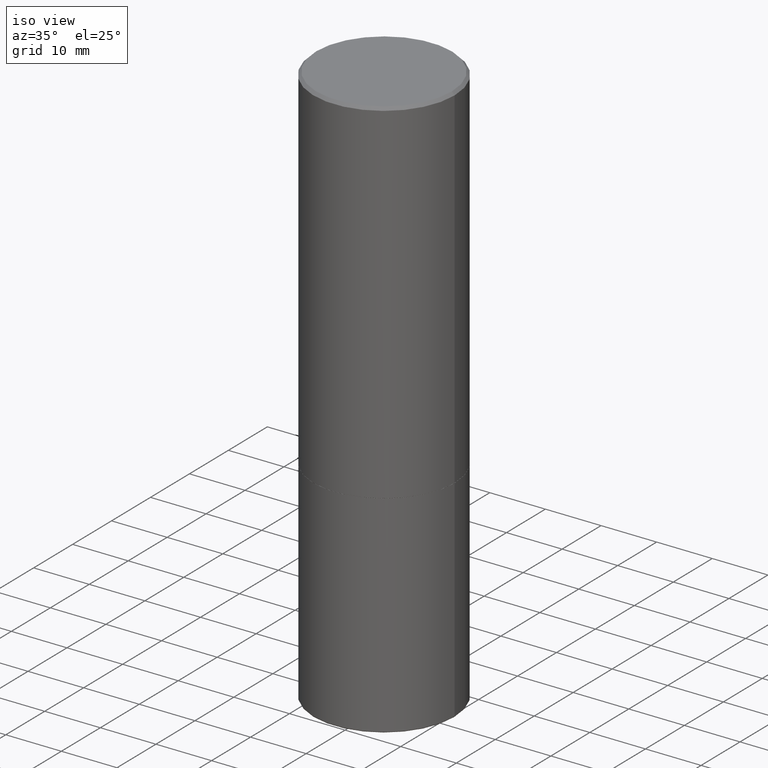
[diagram: clean part render]
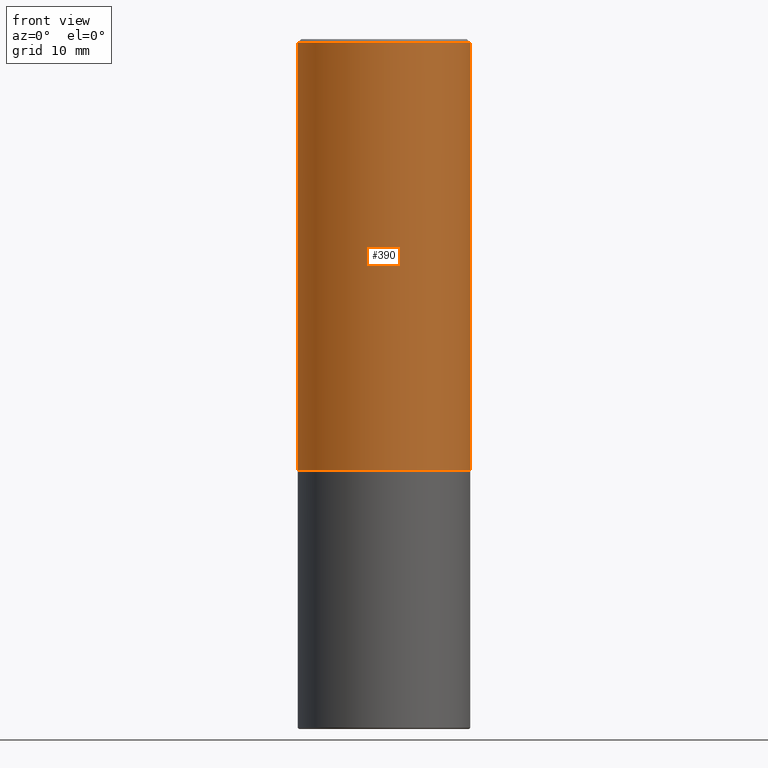
[diagram: tour spotlight — one face highlighted and labeled with its STEP entity id]
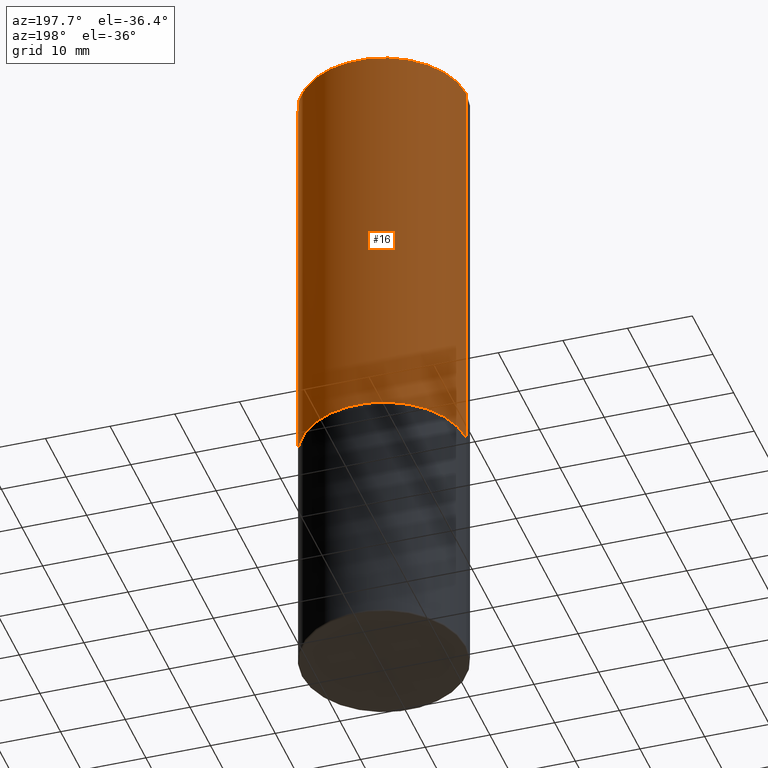
[diagram: tour spotlight — one face highlighted and labeled with its STEP entity id]
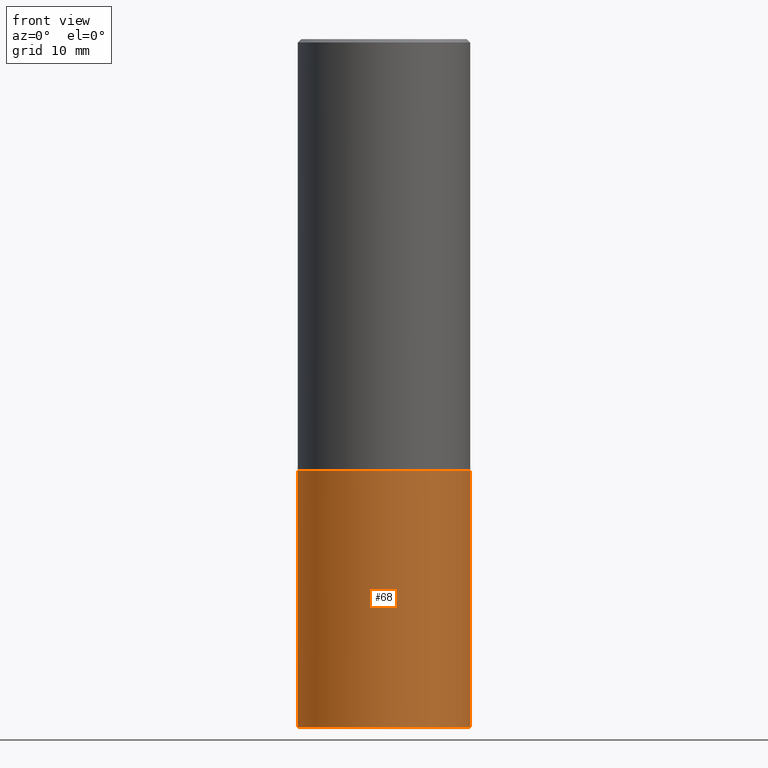
[diagram: tour spotlight — one face highlighted and labeled with its STEP entity id]
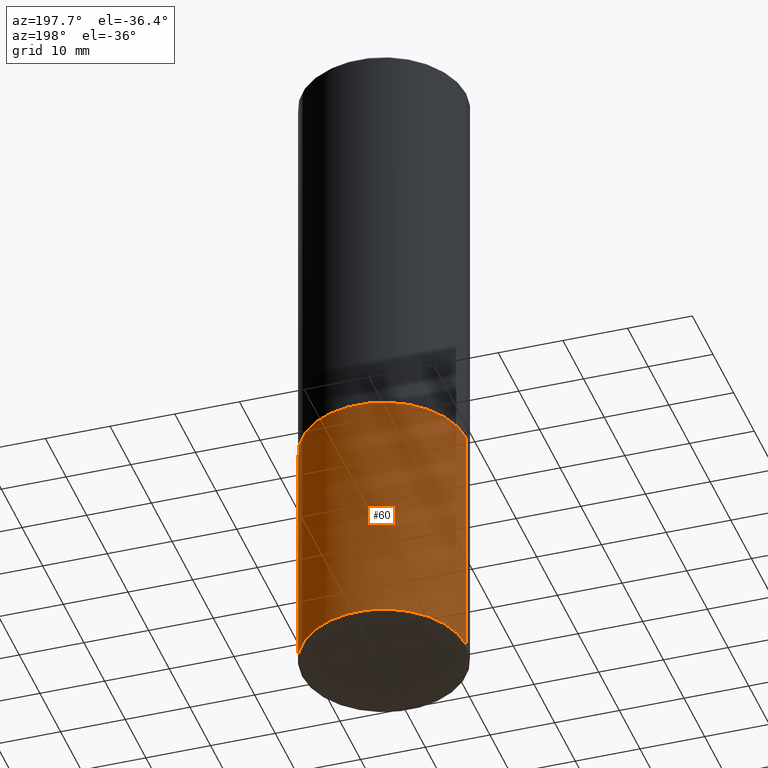
[diagram: tour spotlight — one face highlighted and labeled with its STEP entity id]
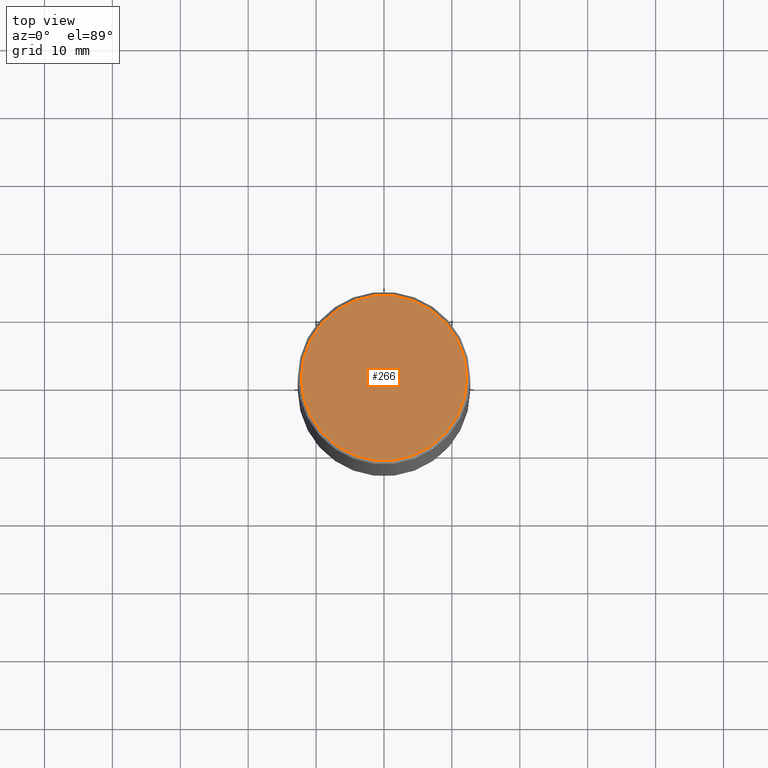
[diagram: tour spotlight — one face highlighted and labeled with its STEP entity id]
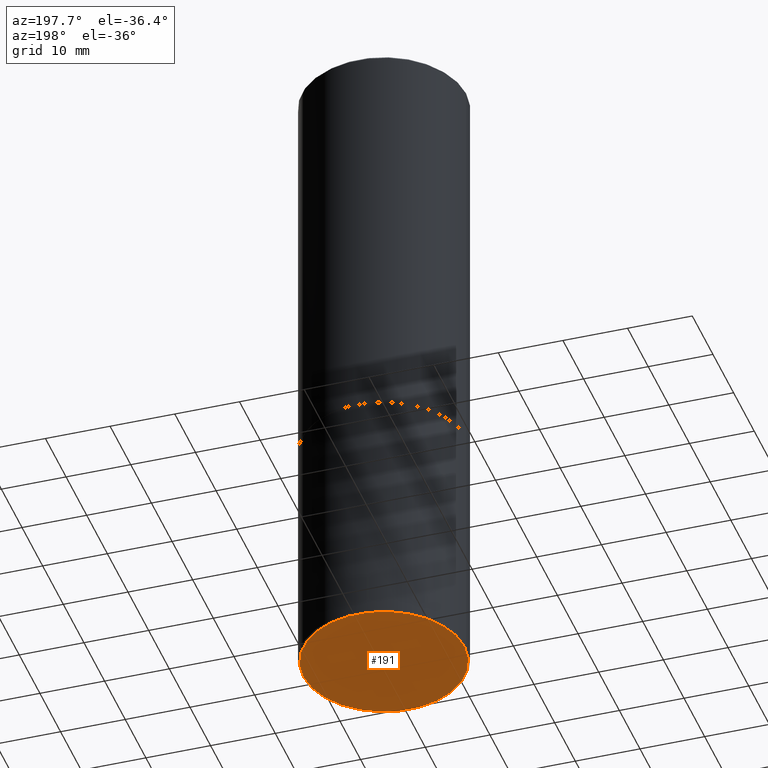
[diagram: tour spotlight — one face highlighted and labeled with its STEP entity id]
A machine part: a face-by-face anatomy tour. The part has 14 B-rep faces; the first image is the clean iso view, then the 6 largest visible faces are spotlighted one at a time (largest first), each with its STEP entity span.

Face 1 — front view, entity #390. In plain terms, the highlighted cylindrical surface (partial cylindrical patch) has radius 12.7 mm, axis along (-0, 0, 1).
Definition (entity closure, byte-faithful):
#8 = EDGE_CURVE ( 'NONE', #214, #286, #413, .T. ) ;
#19 = ORIENTED_EDGE ( 'NONE', *, *, #8, .T. ) ;
#27 = CARTESIAN_POINT ( 'NONE',  ( 0.5000000000000001110, -3.491481338843134539E-15, 2.438088387897968457E-29 ) ) ;
#32 = CIRCLE ( 'NONE', #352, 0.5000000000000001110 ) ;
#35 = CARTESIAN_POINT ( 'NONE',  ( 0.5000000000000002220, -1.221669320461215845E-14, -2.499000000000000110 ) ) ;
#38 = VECTOR ( 'NONE', #217, 39.37007874015748143 ) ;
#50 = CARTESIAN_POINT ( 'NONE',  ( -0.5000000000000002220, -8.448070674724393209E-16, -2.499000000000000110 ) ) ;
#59 = DIRECTION ( 'NONE',  ( 1.000000000000000000, -6.982962677686265922E-15, 0.000000000000000000 ) ) ;
#78 = CYLINDRICAL_SURFACE ( 'NONE', #224, 0.5000000000000001110 ) ;
#97 = CARTESIAN_POINT ( 'NONE',  ( -0.5000000000000001110, 3.552713678800501718E-15, -2.459467545127453732E-29 ) ) ;
#105 = VERTEX_POINT ( 'NONE', #162 ) ;
#107 = DIRECTION ( 'NONE',  ( 1.000000000000000000, -6.982962677686267499E-15, 4.876176775795935793E-29 ) ) ;
#115 = DIRECTION ( 'NONE',  ( -2.445468806185136597E-29, 3.491481338843145583E-15, 1.000000000000000000 ) ) ;
#131 = VECTOR ( 'NONE', #337, 39.37007874015748143 ) ;
#133 = CARTESIAN_POINT ( 'NONE',  ( -0.5000000000000001110, 3.421651712066270452E-15, -0.02000000000000010797 ) ) ;
#150 = CARTESIAN_POINT ( 'NONE',  ( 6.111226546656657010E-29, -8.725211865769021935E-15, -2.499000000000000110 ) ) ;
#153 = EDGE_CURVE ( 'NONE', #240, #105, #32, .T. ) ;
#156 = ORIENTED_EDGE ( 'NONE', *, *, #153, .F. ) ;
#162 = CARTESIAN_POINT ( 'NONE',  ( 0.5000000000000001110, -3.500078625662629868E-15, -0.02000000000000010797 ) ) ;
#163 = LINE ( 'NONE', #97, #38 ) ;
#192 = EDGE_CURVE ( 'NONE', #286, #105, #278, .T. ) ;
#205 = ORIENTED_EDGE ( 'NONE', *, *, #192, .T. ) ;
#208 = EDGE_LOOP ( 'NONE', ( #338, #19, #205, #156 ) ) ;
#214 = VERTEX_POINT ( 'NONE', #50 ) ;
#217 = DIRECTION ( 'NONE',  ( -2.445468806185136877E-29, 3.491481338843145188E-15, 1.000000000000000000 ) ) ;
#224 = AXIS2_PLACEMENT_3D ( 'NONE', #328, #309, #107 ) ;
#240 = VERTEX_POINT ( 'NONE', #133 ) ;
#277 = FACE_OUTER_BOUND ( 'NONE', #208, .T. ) ;
#278 = LINE ( 'NONE', #27, #131 ) ;
#286 = VERTEX_POINT ( 'NONE', #35 ) ;
#290 = DIRECTION ( 'NONE',  ( 1.000000000000000000, -6.982962677686269866E-15, 0.000000000000000000 ) ) ;
#295 = EDGE_CURVE ( 'NONE', #214, #240, #163, .T. ) ;
#298 = AXIS2_PLACEMENT_3D ( 'NONE', #150, #115, #290 ) ;
#309 = DIRECTION ( 'NONE',  ( -2.445468806185136597E-29, 3.491481338843145583E-15, 1.000000000000000000 ) ) ;
#328 = CARTESIAN_POINT ( 'NONE',  ( 0.000000000000000000, 0.000000000000000000, 0.000000000000000000 ) ) ;
#337 = DIRECTION ( 'NONE',  ( -2.445468806185136877E-29, 3.491481338843145188E-15, 1.000000000000000000 ) ) ;
#338 = ORIENTED_EDGE ( 'NONE', *, *, #295, .F. ) ;
#352 = AXIS2_PLACEMENT_3D ( 'NONE', #404, #369, #59 ) ;
#369 = DIRECTION ( 'NONE',  ( -2.445468806185136597E-29, 3.491481338843145583E-15, 1.000000000000000000 ) ) ;
#390 = ADVANCED_FACE ( 'NONE', ( #277 ), #78, .T. ) ;
#404 = CARTESIAN_POINT ( 'NONE',  ( 4.890937612370299433E-31, -6.982962677686328587E-17, -0.02000000000000010797 ) ) ;
#413 = CIRCLE ( 'NONE', #298, 0.5000000000000002220 ) ;

Face 2 — auxiliary view, entity #16. In plain terms, the highlighted cylindrical surface (partial cylindrical patch) has radius 12.7 mm, axis along (-0, 0, 1).
Definition (entity closure, byte-faithful):
#16 = ADVANCED_FACE ( 'NONE', ( #122 ), #259, .T. ) ;
#27 = CARTESIAN_POINT ( 'NONE',  ( 0.5000000000000001110, -3.491481338843134539E-15, 2.438088387897968457E-29 ) ) ;
#35 = CARTESIAN_POINT ( 'NONE',  ( 0.5000000000000002220, -1.221669320461215845E-14, -2.499000000000000110 ) ) ;
#38 = VECTOR ( 'NONE', #217, 39.37007874015748143 ) ;
#50 = CARTESIAN_POINT ( 'NONE',  ( -0.5000000000000002220, -8.448070674724393209E-16, -2.499000000000000110 ) ) ;
#51 = DIRECTION ( 'NONE',  ( -2.445468806185136597E-29, 3.491481338843145583E-15, 1.000000000000000000 ) ) ;
#56 = ORIENTED_EDGE ( 'NONE', *, *, #295, .T. ) ;
#65 = EDGE_CURVE ( 'NONE', #286, #214, #274, .T. ) ;
#79 = DIRECTION ( 'NONE',  ( 1.000000000000000000, -6.982962677686267499E-15, 4.876176775795935793E-29 ) ) ;
#88 = CIRCLE ( 'NONE', #263, 0.5000000000000001110 ) ;
#89 = EDGE_LOOP ( 'NONE', ( #101, #56, #284, #280 ) ) ;
#97 = CARTESIAN_POINT ( 'NONE',  ( -0.5000000000000001110, 3.552713678800501718E-15, -2.459467545127453732E-29 ) ) ;
#99 = AXIS2_PLACEMENT_3D ( 'NONE', #379, #318, #215 ) ;
#101 = ORIENTED_EDGE ( 'NONE', *, *, #65, .T. ) ;
#105 = VERTEX_POINT ( 'NONE', #162 ) ;
#122 = FACE_OUTER_BOUND ( 'NONE', #89, .T. ) ;
#131 = VECTOR ( 'NONE', #337, 39.37007874015748143 ) ;
#133 = CARTESIAN_POINT ( 'NONE',  ( -0.5000000000000001110, 3.421651712066270452E-15, -0.02000000000000010797 ) ) ;
#155 = DIRECTION ( 'NONE',  ( -2.445468806185136597E-29, 3.491481338843145583E-15, 1.000000000000000000 ) ) ;
#162 = CARTESIAN_POINT ( 'NONE',  ( 0.5000000000000001110, -3.500078625662629868E-15, -0.02000000000000010797 ) ) ;
#163 = LINE ( 'NONE', #97, #38 ) ;
#180 = DIRECTION ( 'NONE',  ( 1.000000000000000000, -6.982962677686265922E-15, 0.000000000000000000 ) ) ;
#189 = CARTESIAN_POINT ( 'NONE',  ( 4.890937612370299433E-31, -6.982962677686328587E-17, -0.02000000000000010797 ) ) ;
#192 = EDGE_CURVE ( 'NONE', #286, #105, #278, .T. ) ;
#214 = VERTEX_POINT ( 'NONE', #50 ) ;
#215 = DIRECTION ( 'NONE',  ( 1.000000000000000000, -6.982962677686269866E-15, 0.000000000000000000 ) ) ;
#217 = DIRECTION ( 'NONE',  ( -2.445468806185136877E-29, 3.491481338843145188E-15, 1.000000000000000000 ) ) ;
#219 = EDGE_CURVE ( 'NONE', #105, #240, #88, .T. ) ;
#240 = VERTEX_POINT ( 'NONE', #133 ) ;
#259 = CYLINDRICAL_SURFACE ( 'NONE', #283, 0.5000000000000001110 ) ;
#263 = AXIS2_PLACEMENT_3D ( 'NONE', #189, #155, #180 ) ;
#274 = CIRCLE ( 'NONE', #99, 0.5000000000000002220 ) ;
#278 = LINE ( 'NONE', #27, #131 ) ;
#280 = ORIENTED_EDGE ( 'NONE', *, *, #192, .F. ) ;
#283 = AXIS2_PLACEMENT_3D ( 'NONE', #350, #51, #79 ) ;
#284 = ORIENTED_EDGE ( 'NONE', *, *, #219, .F. ) ;
#286 = VERTEX_POINT ( 'NONE', #35 ) ;
#295 = EDGE_CURVE ( 'NONE', #214, #240, #163, .T. ) ;
#318 = DIRECTION ( 'NONE',  ( -2.445468806185136597E-29, 3.491481338843145583E-15, 1.000000000000000000 ) ) ;
#337 = DIRECTION ( 'NONE',  ( -2.445468806185136877E-29, 3.491481338843145188E-15, 1.000000000000000000 ) ) ;
#350 = CARTESIAN_POINT ( 'NONE',  ( 0.000000000000000000, 0.000000000000000000, 0.000000000000000000 ) ) ;
#379 = CARTESIAN_POINT ( 'NONE',  ( 6.111226546656657010E-29, -8.725211865769021935E-15, -2.499000000000000110 ) ) ;

Face 3 — front view, entity #68. In plain terms, the highlighted cylindrical surface (partial cylindrical patch) has radius 12.7 mm, axis along (-0, 0, 1).
Definition (entity closure, byte-faithful):
#1 = CARTESIAN_POINT ( 'NONE',  ( -0.5000000000000000000, 3.552713678800500929E-15, -2.459467545127452891E-29 ) ) ;
#2 = CARTESIAN_POINT ( 'NONE',  ( 0.5000000000000000000, -1.742249188082728404E-14, -3.989999999999999769 ) ) ;
#5 = LINE ( 'NONE', #1, #148 ) ;
#15 = ORIENTED_EDGE ( 'NONE', *, *, #363, .T. ) ;
#34 = CIRCLE ( 'NONE', #187, 0.5000000000000000000 ) ;
#49 = CARTESIAN_POINT ( 'NONE',  ( 0.5000000000000000000, -3.491481338843133355E-15, 2.438088387897967896E-29 ) ) ;
#52 = VERTEX_POINT ( 'NONE', #312 ) ;
#58 = CYLINDRICAL_SURFACE ( 'NONE', #223, 0.5000000000000000000 ) ;
#63 = ORIENTED_EDGE ( 'NONE', *, *, #123, .T. ) ;
#68 = ADVANCED_FACE ( 'NONE', ( #344 ), #58, .T. ) ;
#70 = DIRECTION ( 'NONE',  ( 1.000000000000000000, -6.982962677686266711E-15, 4.876176775795935793E-29 ) ) ;
#91 = DIRECTION ( 'NONE',  ( -2.445468806185136597E-29, 3.491481338843145583E-15, 1.000000000000000000 ) ) ;
#92 = EDGE_CURVE ( 'NONE', #226, #52, #5, .T. ) ;
#98 = DIRECTION ( 'NONE',  ( -2.445468806185136877E-29, 3.491481338843145188E-15, 1.000000000000000000 ) ) ;
#109 = CARTESIAN_POINT ( 'NONE',  ( 6.113672015462842613E-29, -8.728703347107864943E-15, -2.500000000000000000 ) ) ;
#123 = EDGE_CURVE ( 'NONE', #226, #336, #333, .T. ) ;
#130 = CARTESIAN_POINT ( 'NONE',  ( -0.5000000000000000000, -1.037829686318364817E-14, -3.989999999999999769 ) ) ;
#136 = ORIENTED_EDGE ( 'NONE', *, *, #355, .F. ) ;
#140 = LINE ( 'NONE', #49, #325 ) ;
#148 = VECTOR ( 'NONE', #98, 39.37007874015748143 ) ;
#159 = AXIS2_PLACEMENT_3D ( 'NONE', #388, #229, #206 ) ;
#183 = DIRECTION ( 'NONE',  ( -2.445468806185136877E-29, 3.491481338843145188E-15, 1.000000000000000000 ) ) ;
#187 = AXIS2_PLACEMENT_3D ( 'NONE', #109, #212, #303 ) ;
#194 = CARTESIAN_POINT ( 'NONE',  ( 0.5000000000000000000, -1.222018468595099830E-14, -2.500000000000000000 ) ) ;
#206 = DIRECTION ( 'NONE',  ( 1.000000000000000000, -6.982962677686266711E-15, 0.000000000000000000 ) ) ;
#212 = DIRECTION ( 'NONE',  ( -2.445468806185136597E-29, 3.491481338843145583E-15, 1.000000000000000000 ) ) ;
#223 = AXIS2_PLACEMENT_3D ( 'NONE', #375, #91, #70 ) ;
#226 = VERTEX_POINT ( 'NONE', #130 ) ;
#229 = DIRECTION ( 'NONE',  ( -2.445468806185136597E-29, 3.491481338843145583E-15, 1.000000000000000000 ) ) ;
#249 = ORIENTED_EDGE ( 'NONE', *, *, #92, .F. ) ;
#275 = VERTEX_POINT ( 'NONE', #194 ) ;
#303 = DIRECTION ( 'NONE',  ( 1.000000000000000000, -6.982962677686269077E-15, 0.000000000000000000 ) ) ;
#312 = CARTESIAN_POINT ( 'NONE',  ( -0.5000000000000000000, -7.777143265745505305E-15, -2.500000000000000000 ) ) ;
#314 = EDGE_LOOP ( 'NONE', ( #249, #63, #15, #136 ) ) ;
#325 = VECTOR ( 'NONE', #183, 39.37007874015748143 ) ;
#333 = CIRCLE ( 'NONE', #159, 0.5000000000000000000 ) ;
#336 = VERTEX_POINT ( 'NONE', #2 ) ;
#344 = FACE_OUTER_BOUND ( 'NONE', #314, .T. ) ;
#355 = EDGE_CURVE ( 'NONE', #52, #275, #34, .T. ) ;
#363 = EDGE_CURVE ( 'NONE', #336, #275, #140, .T. ) ;
#375 = CARTESIAN_POINT ( 'NONE',  ( 0.000000000000000000, 0.000000000000000000, 0.000000000000000000 ) ) ;
#388 = CARTESIAN_POINT ( 'NONE',  ( 9.757420536678694842E-29, -1.393101054198414910E-14, -3.989999999999999769 ) ) ;

Face 4 — auxiliary view, entity #60. In plain terms, the highlighted cylindrical surface (partial cylindrical patch) has radius 12.7 mm, axis along (-0, 0, 1).
Definition (entity closure, byte-faithful):
#1 = CARTESIAN_POINT ( 'NONE',  ( -0.5000000000000000000, 3.552713678800500929E-15, -2.459467545127452891E-29 ) ) ;
#2 = CARTESIAN_POINT ( 'NONE',  ( 0.5000000000000000000, -1.742249188082728404E-14, -3.989999999999999769 ) ) ;
#5 = LINE ( 'NONE', #1, #148 ) ;
#29 = DIRECTION ( 'NONE',  ( 1.000000000000000000, -6.982962677686266711E-15, 4.876176775795935793E-29 ) ) ;
#30 = DIRECTION ( 'NONE',  ( -2.445468806185136597E-29, 3.491481338843145583E-15, 1.000000000000000000 ) ) ;
#44 = CIRCLE ( 'NONE', #291, 0.5000000000000000000 ) ;
#49 = CARTESIAN_POINT ( 'NONE',  ( 0.5000000000000000000, -3.491481338843133355E-15, 2.438088387897967896E-29 ) ) ;
#52 = VERTEX_POINT ( 'NONE', #312 ) ;
#55 = AXIS2_PLACEMENT_3D ( 'NONE', #116, #254, #29 ) ;
#60 = ADVANCED_FACE ( 'NONE', ( #151 ), #407, .T. ) ;
#92 = EDGE_CURVE ( 'NONE', #226, #52, #5, .T. ) ;
#98 = DIRECTION ( 'NONE',  ( -2.445468806185136877E-29, 3.491481338843145188E-15, 1.000000000000000000 ) ) ;
#103 = EDGE_CURVE ( 'NONE', #336, #226, #44, .T. ) ;
#116 = CARTESIAN_POINT ( 'NONE',  ( 0.000000000000000000, 0.000000000000000000, 0.000000000000000000 ) ) ;
#130 = CARTESIAN_POINT ( 'NONE',  ( -0.5000000000000000000, -1.037829686318364817E-14, -3.989999999999999769 ) ) ;
#140 = LINE ( 'NONE', #49, #325 ) ;
#148 = VECTOR ( 'NONE', #98, 39.37007874015748143 ) ;
#151 = FACE_OUTER_BOUND ( 'NONE', #397, .T. ) ;
#167 = CARTESIAN_POINT ( 'NONE',  ( 9.757420536678694842E-29, -1.393101054198414910E-14, -3.989999999999999769 ) ) ;
#169 = AXIS2_PLACEMENT_3D ( 'NONE', #353, #30, #319 ) ;
#183 = DIRECTION ( 'NONE',  ( -2.445468806185136877E-29, 3.491481338843145188E-15, 1.000000000000000000 ) ) ;
#194 = CARTESIAN_POINT ( 'NONE',  ( 0.5000000000000000000, -1.222018468595099830E-14, -2.500000000000000000 ) ) ;
#222 = DIRECTION ( 'NONE',  ( -2.445468806185136597E-29, 3.491481338843145583E-15, 1.000000000000000000 ) ) ;
#226 = VERTEX_POINT ( 'NONE', #130 ) ;
#233 = ORIENTED_EDGE ( 'NONE', *, *, #279, .F. ) ;
#235 = CIRCLE ( 'NONE', #169, 0.5000000000000000000 ) ;
#245 = ORIENTED_EDGE ( 'NONE', *, *, #103, .T. ) ;
#254 = DIRECTION ( 'NONE',  ( -2.445468806185136597E-29, 3.491481338843145583E-15, 1.000000000000000000 ) ) ;
#267 = DIRECTION ( 'NONE',  ( 1.000000000000000000, -6.982962677686266711E-15, 0.000000000000000000 ) ) ;
#275 = VERTEX_POINT ( 'NONE', #194 ) ;
#279 = EDGE_CURVE ( 'NONE', #275, #52, #235, .T. ) ;
#291 = AXIS2_PLACEMENT_3D ( 'NONE', #167, #222, #267 ) ;
#312 = CARTESIAN_POINT ( 'NONE',  ( -0.5000000000000000000, -7.777143265745505305E-15, -2.500000000000000000 ) ) ;
#319 = DIRECTION ( 'NONE',  ( 1.000000000000000000, -6.982962677686269077E-15, 0.000000000000000000 ) ) ;
#325 = VECTOR ( 'NONE', #183, 39.37007874015748143 ) ;
#326 = ORIENTED_EDGE ( 'NONE', *, *, #92, .T. ) ;
#336 = VERTEX_POINT ( 'NONE', #2 ) ;
#353 = CARTESIAN_POINT ( 'NONE',  ( 6.113672015462842613E-29, -8.728703347107864943E-15, -2.500000000000000000 ) ) ;
#363 = EDGE_CURVE ( 'NONE', #336, #275, #140, .T. ) ;
#372 = ORIENTED_EDGE ( 'NONE', *, *, #363, .F. ) ;
#397 = EDGE_LOOP ( 'NONE', ( #245, #326, #233, #372 ) ) ;
#407 = CYLINDRICAL_SURFACE ( 'NONE', #55, 0.5000000000000000000 ) ;

Face 5 — top view, entity #266. In plain terms, the highlighted planar face has unit normal (0, -0, -1).
Definition (entity closure, byte-faithful):
#4 = CARTESIAN_POINT ( 'NONE',  ( -4.279790798774401163E-45, 6.110406998559833931E-31, 1.750090120941168532E-16 ) ) ;
#22 = AXIS2_PLACEMENT_3D ( 'NONE', #315, #117, #152 ) ;
#33 = EDGE_CURVE ( 'NONE', #343, #387, #111, .T. ) ;
#37 = CIRCLE ( 'NONE', #22, 0.4799999999999999267 ) ;
#95 = PLANE ( 'NONE',  #177 ) ;
#111 = CIRCLE ( 'NONE', #234, 0.4799999999999999267 ) ;
#114 = ORIENTED_EDGE ( 'NONE', *, *, #199, .T. ) ;
#117 = DIRECTION ( 'NONE',  ( -2.445468806185136597E-29, 3.491481338843145583E-15, 1.000000000000000000 ) ) ;
#135 = CARTESIAN_POINT ( 'NONE',  ( 0.4799999999999999267, -3.396558832296482099E-15, 1.750090120941404697E-16 ) ) ;
#152 = DIRECTION ( 'NONE',  ( 1.000000000000000000, -6.982962677686266711E-15, 4.878011538933550964E-29 ) ) ;
#177 = AXIS2_PLACEMENT_3D ( 'NONE', #262, #265, #236 ) ;
#199 = EDGE_CURVE ( 'NONE', #387, #343, #37, .T. ) ;
#234 = AXIS2_PLACEMENT_3D ( 'NONE', #4, #330, #276 ) ;
#236 = DIRECTION ( 'NONE',  ( -1.000000000000000000, 6.982962677686265922E-15, -4.876176775795935793E-29 ) ) ;
#262 = CARTESIAN_POINT ( 'NONE',  ( 3.351822085289407153E-15, 0.4799999999999999267, -1.588406536597651338E-15 ) ) ;
#265 = DIRECTION ( 'NONE',  ( 2.438088387897960049E-29, -3.491481338843145188E-15, -1.000000000000000000 ) ) ;
#266 = ADVANCED_FACE ( 'NONE', ( #321 ), #95, .F. ) ;
#276 = DIRECTION ( 'NONE',  ( 1.000000000000000000, -6.982962677686266711E-15, 4.878011538933550964E-29 ) ) ;
#315 = CARTESIAN_POINT ( 'NONE',  ( -4.279790798774401163E-45, 6.110406998559833931E-31, 1.750090120941168532E-16 ) ) ;
#321 = FACE_OUTER_BOUND ( 'NONE', #386, .T. ) ;
#330 = DIRECTION ( 'NONE',  ( -2.445468806185136597E-29, 3.491481338843145583E-15, 1.000000000000000000 ) ) ;
#343 = VERTEX_POINT ( 'NONE', #135 ) ;
#359 = CARTESIAN_POINT ( 'NONE',  ( -0.4799999999999999267, 3.386736898677839197E-15, 1.750090120940932860E-16 ) ) ;
#386 = EDGE_LOOP ( 'NONE', ( #114, #391 ) ) ;
#387 = VERTEX_POINT ( 'NONE', #359 ) ;
#391 = ORIENTED_EDGE ( 'NONE', *, *, #33, .T. ) ;

Face 6 — auxiliary view, entity #191. In plain terms, the highlighted planar face has unit normal (0, -0, -1).
Definition (entity closure, byte-faithful):
#24 = DIRECTION ( 'NONE',  ( -1.000000000000000000, 6.982962677686265922E-15, -4.876176775795935793E-29 ) ) ;
#41 = DIRECTION ( 'NONE',  ( 1.000000000000000000, -6.982962677686265922E-15, 0.000000000000000000 ) ) ;
#61 = VERTEX_POINT ( 'NONE', #371 ) ;
#76 = ORIENTED_EDGE ( 'NONE', *, *, #77, .F. ) ;
#77 = EDGE_CURVE ( 'NONE', #86, #61, #323, .T. ) ;
#86 = VERTEX_POINT ( 'NONE', #305 ) ;
#134 = EDGE_CURVE ( 'NONE', #61, #86, #168, .T. ) ;
#166 = CARTESIAN_POINT ( 'NONE',  ( 9.781875224740546387E-29, -1.396592535537258233E-14, -4.000000000000000000 ) ) ;
#168 = CIRCLE ( 'NONE', #395, 0.4899999999999999911 ) ;
#191 = ADVANCED_FACE ( 'NONE', ( #281 ), #335, .T. ) ;
#204 = CARTESIAN_POINT ( 'NONE',  ( 9.781875224740546387E-29, -1.396592535537258233E-14, -4.000000000000000000 ) ) ;
#247 = DIRECTION ( 'NONE',  ( 2.438088387897960049E-29, -3.491481338843145188E-15, -1.000000000000000000 ) ) ;
#281 = FACE_OUTER_BOUND ( 'NONE', #282, .T. ) ;
#282 = EDGE_LOOP ( 'NONE', ( #76, #306 ) ) ;
#296 = AXIS2_PLACEMENT_3D ( 'NONE', #166, #299, #41 ) ;
#299 = DIRECTION ( 'NONE',  ( -2.445468806185136597E-29, 3.491481338843145583E-15, 1.000000000000000000 ) ) ;
#305 = CARTESIAN_POINT ( 'NONE',  ( 0.4899999999999999911, -1.738757706743885081E-14, -4.000000000000000000 ) ) ;
#306 = ORIENTED_EDGE ( 'NONE', *, *, #134, .F. ) ;
#323 = CIRCLE ( 'NONE', #296, 0.4899999999999999911 ) ;
#331 = DIRECTION ( 'NONE',  ( -2.445468806185136597E-29, 3.491481338843145583E-15, 1.000000000000000000 ) ) ;
#335 = PLANE ( 'NONE',  #380 ) ;
#339 = CARTESIAN_POINT ( 'NONE',  ( 9.781875224740546387E-29, -1.396592535537258233E-14, -4.000000000000000000 ) ) ;
#371 = CARTESIAN_POINT ( 'NONE',  ( -0.4899999999999999911, -1.043128140666586904E-14, -4.000000000000000000 ) ) ;
#380 = AXIS2_PLACEMENT_3D ( 'NONE', #339, #247, #24 ) ;
#393 = DIRECTION ( 'NONE',  ( 1.000000000000000000, -6.982962677686265922E-15, 0.000000000000000000 ) ) ;
#395 = AXIS2_PLACEMENT_3D ( 'NONE', #204, #331, #393 ) ;